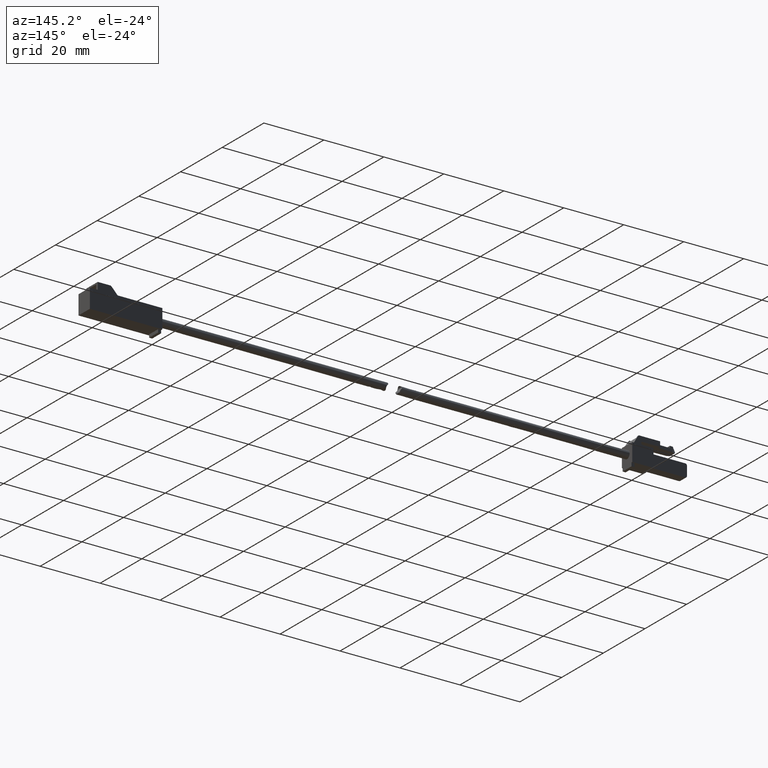
[diagram: clean part render]
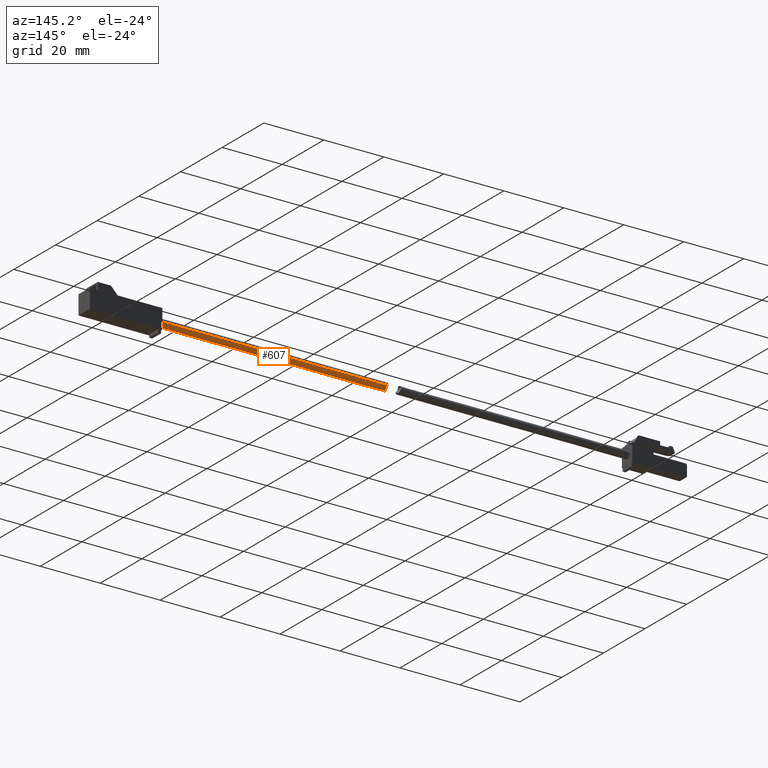
[diagram: same view with one face highlighted and labeled with its STEP entity id]
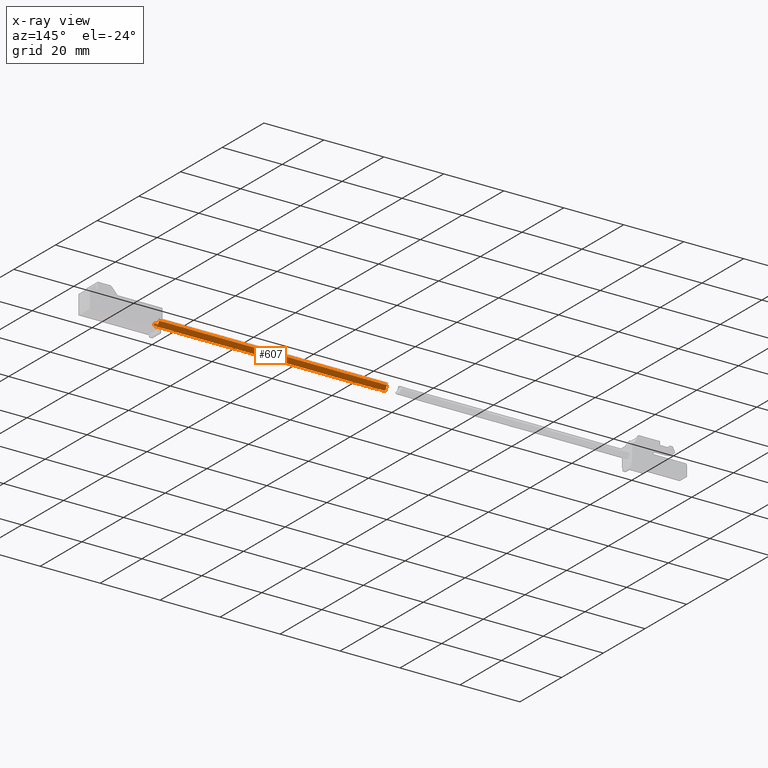
[diagram: x-ray of the same camera — body ghosted, the highlighted face saturated]
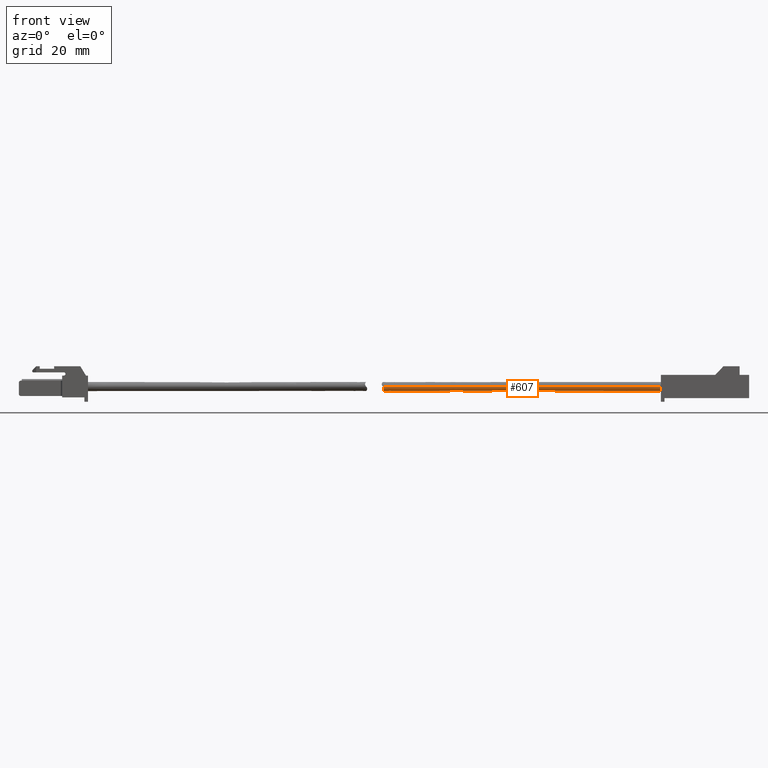
[diagram: same view with one face highlighted and labeled with its STEP entity id]
A machine part, auxiliary view. The second image highlights one B-rep face of the part: STEP entity #607.
The next image is the same camera in x-ray: the body ghosted, the highlighted face saturated — about 0% of this face is hidden behind the body in this view.
A second angle (front view) of the same face is appended — the face is thin or edge-on in the first view.
In plain terms, the highlighted face is a freeform B-spline surface patch.
Its self-contained STEP definition (entity closure, byte-faithful):
#357=CARTESIAN_POINT('',(2.300000000000000,-1.250000000000306,3.330669E-016));
#358=VERTEX_POINT('',#357);
#364=CARTESIAN_POINT('',(2.197703587288286,-1.246146683450683,0.098073915507565));
#365=VERTEX_POINT('',#364);
#366=CARTESIAN_POINT('',(2.300000000000000,-1.250000000000306,3.330669E-016));
#367=CARTESIAN_POINT('',(2.265584432712960,-1.249999994447209,0.027589798652399));
#368=CARTESIAN_POINT('',(2.233909581820482,-1.249092285933007,0.057621688510492));
#369=CARTESIAN_POINT('',(2.202468764679368,-1.246564187051494,0.092654896907182));
#370=CARTESIAN_POINT('',(2.200077003932020,-1.246360537160404,0.095356383921207));
#371=CARTESIAN_POINT('',(2.197703587288286,-1.246146683450683,0.098073915507565));
#372=B_SPLINE_CURVE_WITH_KNOTS('',3,(#366,#367,#368,#369,#370,#371),.UNSPECIFIED.,.F.,.U.,(4,2,4),(0.0,0.031250000000000,0.033844311896491),.UNSPECIFIED.);
#373=EDGE_CURVE('',#358,#365,#372,.T.);
#460=CARTESIAN_POINT('',(2.402294953251520,1.246146447890810,-0.098073873213585));
#461=VERTEX_POINT('',#460);
#471=CARTESIAN_POINT('',(2.300000000000000,-1.250000000000306,3.330669E-016));
#472=CARTESIAN_POINT('',(2.334415558930241,-1.249999999782653,-0.027589806405144));
#473=CARTESIAN_POINT('',(2.366090401520643,-1.249092296492798,-0.057621703971694));
#474=CARTESIAN_POINT('',(2.409636504318490,-1.245590840231304,-0.106143359183186));
#475=CARTESIAN_POINT('',(2.423487587592960,-1.244066017152474,-0.122899119174808));
#476=CARTESIAN_POINT('',(2.449847573671176,-1.240150910194515,-0.157575909052634));
#477=CARTESIAN_POINT('',(2.462412227898396,-1.237746040192025,-0.175586996221834));
#478=CARTESIAN_POINT('',(2.497608248968650,-1.229086235155734,-0.230718992823240));
#479=CARTESIAN_POINT('',(2.517615709214768,-1.221451049398411,-0.268638909070329));
#480=CARTESIAN_POINT('',(2.542795076226767,-1.206645912062528,-0.326967909753720));
#481=CARTESIAN_POINT('',(2.550379447530393,-1.201151456899290,-0.346653874643323));
#482=CARTESIAN_POINT('',(2.563952740272077,-1.188936590660330,-0.386475758395972));
#483=CARTESIAN_POINT('',(2.569960032874304,-1.182178510206865,-0.406705315587414));
#484=CARTESIAN_POINT('',(2.585327447309269,-1.160324738206229,-0.466869928729789));
#485=CARTESIAN_POINT('',(2.592165525525853,-1.143597057585973,-0.506532377795441));
#486=CARTESIAN_POINT('',(2.599952581770363,-1.105650133608498,-0.584745290736037));
#487=CARTESIAN_POINT('',(2.600860601323395,-1.084237957216325,-0.623571447112779));
#488=CARTESIAN_POINT('',(2.597547256007922,-1.037997494417213,-0.697835576697275));
#489=CARTESIAN_POINT('',(2.593384131954063,-1.013126261592226,-0.733450894988217));
#490=CARTESIAN_POINT('',(2.581016615694896,-0.959942341034504,-0.801801554495890));
#491=CARTESIAN_POINT('',(2.572746178206998,-0.931480892141381,-0.834658331393960));
#492=CARTESIAN_POINT('',(2.543764227747229,-0.843091377010901,-0.926791144472087));
#493=CARTESIAN_POINT('',(2.518840392043102,-0.779673007912647,-0.980549428150282));
#494=CARTESIAN_POINT('',(2.477688525068735,-0.677473710682709,-1.051306859670641));
#495=CARTESIAN_POINT('',(2.463282519360044,-0.642094940507480,-1.073271722792413));
#496=CARTESIAN_POINT('',(2.434492951218176,-0.570012217880555,-1.113231411979776));
#497=CARTESIAN_POINT('',(2.420053308851730,-0.533179683601956,-1.131331195520901));
#498=CARTESIAN_POINT('',(2.391991254260621,-0.457673492002885,-1.163926899893389));
#499=CARTESIAN_POINT('',(2.378363929918218,-0.419001941489913,-1.178423616815902));
#500=CARTESIAN_POINT('',(2.353049268573393,-0.339394668115961,-1.203767467162727));
#501=CARTESIAN_POINT('',(2.341314007857779,-0.298210461289424,-1.214653075426495));
#502=CARTESIAN_POINT('',(2.321682080638917,-0.214896464909678,-1.232124626109042));
#503=CARTESIAN_POINT('',(2.313740024918036,-0.172646464730374,-1.238772949377020));
#504=CARTESIAN_POINT('',(2.305581404767879,-0.108213293154224,-1.245494351755451));
#505=CARTESIAN_POINT('',(2.303486907247544,-0.086559077692779,-1.247191233084107));
#506=CARTESIAN_POINT('',(2.300680940501408,-0.042870437344194,-1.249456113921650));
#507=CARTESIAN_POINT('',(2.299975069681060,-0.020747013550179,-1.250019994181247));
#508=CARTESIAN_POINT('',(2.300103177273586,0.088845507125705,-1.249917295078182));
#509=CARTESIAN_POINT('',(2.312041933213653,0.174469927358565,-1.240728789709128));
#510=CARTESIAN_POINT('',(2.351797356861058,0.342205395450165,-1.205297974113589));
#511=CARTESIAN_POINT('',(2.378304125052234,0.420912843354053,-1.179868953331734));
#512=CARTESIAN_POINT('',(2.420403016626764,0.534086768433411,-1.130902764606754));
#513=CARTESIAN_POINT('',(2.434870071467895,0.570970280135437,-1.112746236971855));
#514=CARTESIAN_POINT('',(2.463763883048179,0.643286343176670,-1.072564199039716));
#515=CARTESIAN_POINT('',(2.478058043767998,0.678386192282009,-1.050710117615653));
#516=CARTESIAN_POINT('',(2.518973349908552,0.780014416517481,-0.980242385437133));
#517=CARTESIAN_POINT('',(2.543839546635283,0.843286786956162,-0.926621600492056));
#518=CARTESIAN_POINT('',(2.572825956513268,0.931741752515702,-0.834369609592844));
#519=CARTESIAN_POINT('',(2.581079030261468,0.960182744405683,-0.801507595097768));
#520=CARTESIAN_POINT('',(2.593396575609951,1.013208307224264,-0.733330950589890));
#521=CARTESIAN_POINT('',(2.597543573860860,1.038004997494155,-0.697816251597986));
#522=CARTESIAN_POINT('',(2.600855534542359,1.084108661997282,-0.623787087881242));
#523=CARTESIAN_POINT('',(2.599958441493047,1.105573631277870,-0.584888422786299));
#524=CARTESIAN_POINT('',(2.592193367328989,1.143509679961792,-0.506727890495606));
#525=CARTESIAN_POINT('',(2.585387679015604,1.160135454039038,-0.467297101715792));
#526=CARTESIAN_POINT('',(2.570269659677452,1.181788642039894,-0.407824969741750));
#527=CARTESIAN_POINT('',(2.564409543852199,1.188457839987844,-0.387946732736791));
#528=CARTESIAN_POINT('',(2.550920460767935,1.200727890815177,-0.348119582939088));
#529=CARTESIAN_POINT('',(2.543242081771798,1.206349654759160,-0.328072188488557));
#530=CARTESIAN_POINT('',(2.517907470253411,1.221344728017567,-0.269181885241032));
#531=CARTESIAN_POINT('',(2.497893188636704,1.228973491958467,-0.231269462145962));
#532=CARTESIAN_POINT('',(2.453287458318561,1.240029955436990,-0.161199932273177));
#533=CARTESIAN_POINT('',(2.428934243903847,1.243741809379859,-0.128586871063241));
#534=CARTESIAN_POINT('',(2.402294953251520,1.246146447890810,-0.098073873213585));
#535=B_SPLINE_CURVE_WITH_KNOTS('',3,(#471,#472,#473,#474,#475,#476,#477,#478,#479,#480,#481,#482,#483,#484,#485,#486,#487,#488,#489,#490,#491,#492,#493,#494,#495,#496,#497,#498,#499,#500,#501,#502,#503,#504,#505,#506,#507,#508,#509,#510,#511,#512,#513,#514,#515,#516,#517,#518,#519,#520,#521,#522,#523,#524,#525,#526,#527,#528,#529,#530,#531,#532,#533,#534),.UNSPECIFIED.,.F.,.U.,(4,2,2,2,2,2,2,2,2,2,2,2,2,2,2,2,2,2,2,2,2,2,2,2,2,2,2,2,2,2,2,4),(0.0,0.031250000000000,0.046875000000000,0.062499999999999,0.093749999999999,0.109374999999999,0.124999999999999,0.156249999999999,0.187499999999999,0.218749999999999,0.249999999999999,0.312499999999999,0.343749999999999,0.374999999999999,0.406249999999999,0.437499999999999,0.468749999999999,0.484374999999999,0.499999999999999,0.562499999999999,0.624999999999999,0.656249999999999,0.687499999999999,0.750000000000000,0.781250000000000,0.812500000000000,0.843750000000000,0.875000000000000,0.890625000000000,0.906250000000000,0.937500000000000,0.966341268069300),.UNSPECIFIED.);
#536=EDGE_CURVE('',#358,#461,#535,.T.);
#541=CARTESIAN_POINT('',(80.455560768116257,1.246146667166409,-0.098073869659806));
#542=CARTESIAN_POINT('',(80.455560768116257,1.148072797506603,-1.344220536826216));
#543=CARTESIAN_POINT('',(80.455560768116257,-0.098073869659806,-1.246146667166409));
#544=CARTESIAN_POINT('',(80.455560768116257,-1.344220536826216,-1.148072797506603));
#545=CARTESIAN_POINT('',(80.455560768116257,-1.246146667166409,0.098073869659806));
#546=CARTESIAN_POINT('',(0.042537546009797,1.246146667166409,-0.098073869659806));
#547=CARTESIAN_POINT('',(0.042537546009797,1.148072797506603,-1.344220536826216));
#548=CARTESIAN_POINT('',(0.042537546009797,-0.098073869659806,-1.246146667166409));
#549=CARTESIAN_POINT('',(0.042537546009797,-1.344220536826216,-1.148072797506603));
#550=CARTESIAN_POINT('',(0.042537546009797,-1.246146667166409,0.098073869659806));
#558=(BOUNDED_SURFACE()B_SPLINE_SURFACE(2,1,((#541,#546),(#542,#547),(#543,#548),(#544,#549),(#545,#550)),.UNSPECIFIED.,.F.,.F.,.U.)B_SPLINE_SURFACE_WITH_KNOTS((3,2,3),(2,2),(3.141592653589793,4.712388980384690,6.283185307179586),(0.0,80.413023222106474),.UNSPECIFIED.)GEOMETRIC_REPRESENTATION_ITEM()RATIONAL_B_SPLINE_SURFACE(((1.0,1.0),(0.707106781186548,0.707106781186548),(1.0,1.0),(0.707106781186548,0.707106781186548),(1.0,1.0)))REPRESENTATION_ITEM('')SURFACE());
#559=ORIENTED_EDGE('',*,*,#536,.T.);
#560=CARTESIAN_POINT('',(78.542103939511691,1.246146667071423,-0.098073870866729));
#561=VERTEX_POINT('',#560);
#562=CARTESIAN_POINT('',(78.542103939511691,1.246146667071423,-0.098073870866729));
#563=CARTESIAN_POINT('',(2.402294953251520,1.246146447890810,-0.098073873213585));
#564=QUASI_UNIFORM_CURVE('',1,(#562,#563),.UNSPECIFIED.,.F.,.U.);
#565=EDGE_CURVE('',#561,#461,#564,.T.);
#566=ORIENTED_EDGE('',*,*,#565,.F.);
#567=CARTESIAN_POINT('',(78.542103939511691,0.0,-1.250000000000000));
#568=VERTEX_POINT('',#567);
#569=CARTESIAN_POINT('',(78.542103939511691,0.0,-1.250000000000000));
#570=CARTESIAN_POINT('',(78.542103939511691,1.155488113450181,-1.250000000000000));
#571=CARTESIAN_POINT('',(78.542103939511691,1.246146667071423,-0.098073870866729));
#579=(BOUNDED_CURVE()B_SPLINE_CURVE(2,(#569,#570,#571),.UNSPECIFIED.,.F.,.U.)B_SPLINE_CURVE_WITH_KNOTS((3,3),(0.500000000000000,0.736331300466738),.UNSPECIFIED.)CURVE()GEOMETRIC_REPRESENTATION_ITEM()RATIONAL_B_SPLINE_CURVE((1.0,0.723120658799711,0.969723355825326))REPRESENTATION_ITEM(''));
#580=EDGE_CURVE('',#568,#561,#579,.T.);
#581=ORIENTED_EDGE('',*,*,#580,.F.);
#582=CARTESIAN_POINT('',(78.542103939511691,-1.246146667071423,0.098073870866729));
#583=VERTEX_POINT('',#582);
#584=CARTESIAN_POINT('',(78.542103939511705,-1.246146667071423,0.098073870866729));
#585=CARTESIAN_POINT('',(78.542103939511705,-1.250000000000000,0.049112634365849));
#586=CARTESIAN_POINT('',(78.542103939511691,-1.250000000000000,0.0));
#587=CARTESIAN_POINT('',(78.542103939511691,-1.250000000000000,-1.250000000000000));
#588=CARTESIAN_POINT('',(78.542103939511691,0.0,-1.250000000000000));
#596=(BOUNDED_CURVE()B_SPLINE_CURVE(2,(#584,#585,#586,#587,#588),.UNSPECIFIED.,.F.,.U.)B_SPLINE_CURVE_WITH_KNOTS((3,2,3),(0.236331300466738,0.250000000000000,0.500000000000000),.UNSPECIFIED.)CURVE()GEOMETRIC_REPRESENTATION_ITEM()RATIONAL_B_SPLINE_CURVE((0.969723355825326,0.983986122386836,1.0,0.707106781186548,1.0))REPRESENTATION_ITEM(''));
#597=EDGE_CURVE('',#583,#568,#596,.T.);
#598=ORIENTED_EDGE('',*,*,#597,.F.);
#599=CARTESIAN_POINT('',(78.542103939511691,-1.246146667071423,0.098073870866729));
#600=CARTESIAN_POINT('',(2.197703587288286,-1.246146683450683,0.098073915507565));
#601=QUASI_UNIFORM_CURVE('',1,(#599,#600),.UNSPECIFIED.,.F.,.U.);
#602=EDGE_CURVE('',#583,#365,#601,.T.);
#603=ORIENTED_EDGE('',*,*,#602,.T.);
#604=ORIENTED_EDGE('',*,*,#373,.F.);
#605=EDGE_LOOP('',(#559,#566,#581,#598,#603,#604));
#606=FACE_OUTER_BOUND('',#605,.T.);
#607=ADVANCED_FACE('',(#606),#558,.T.);